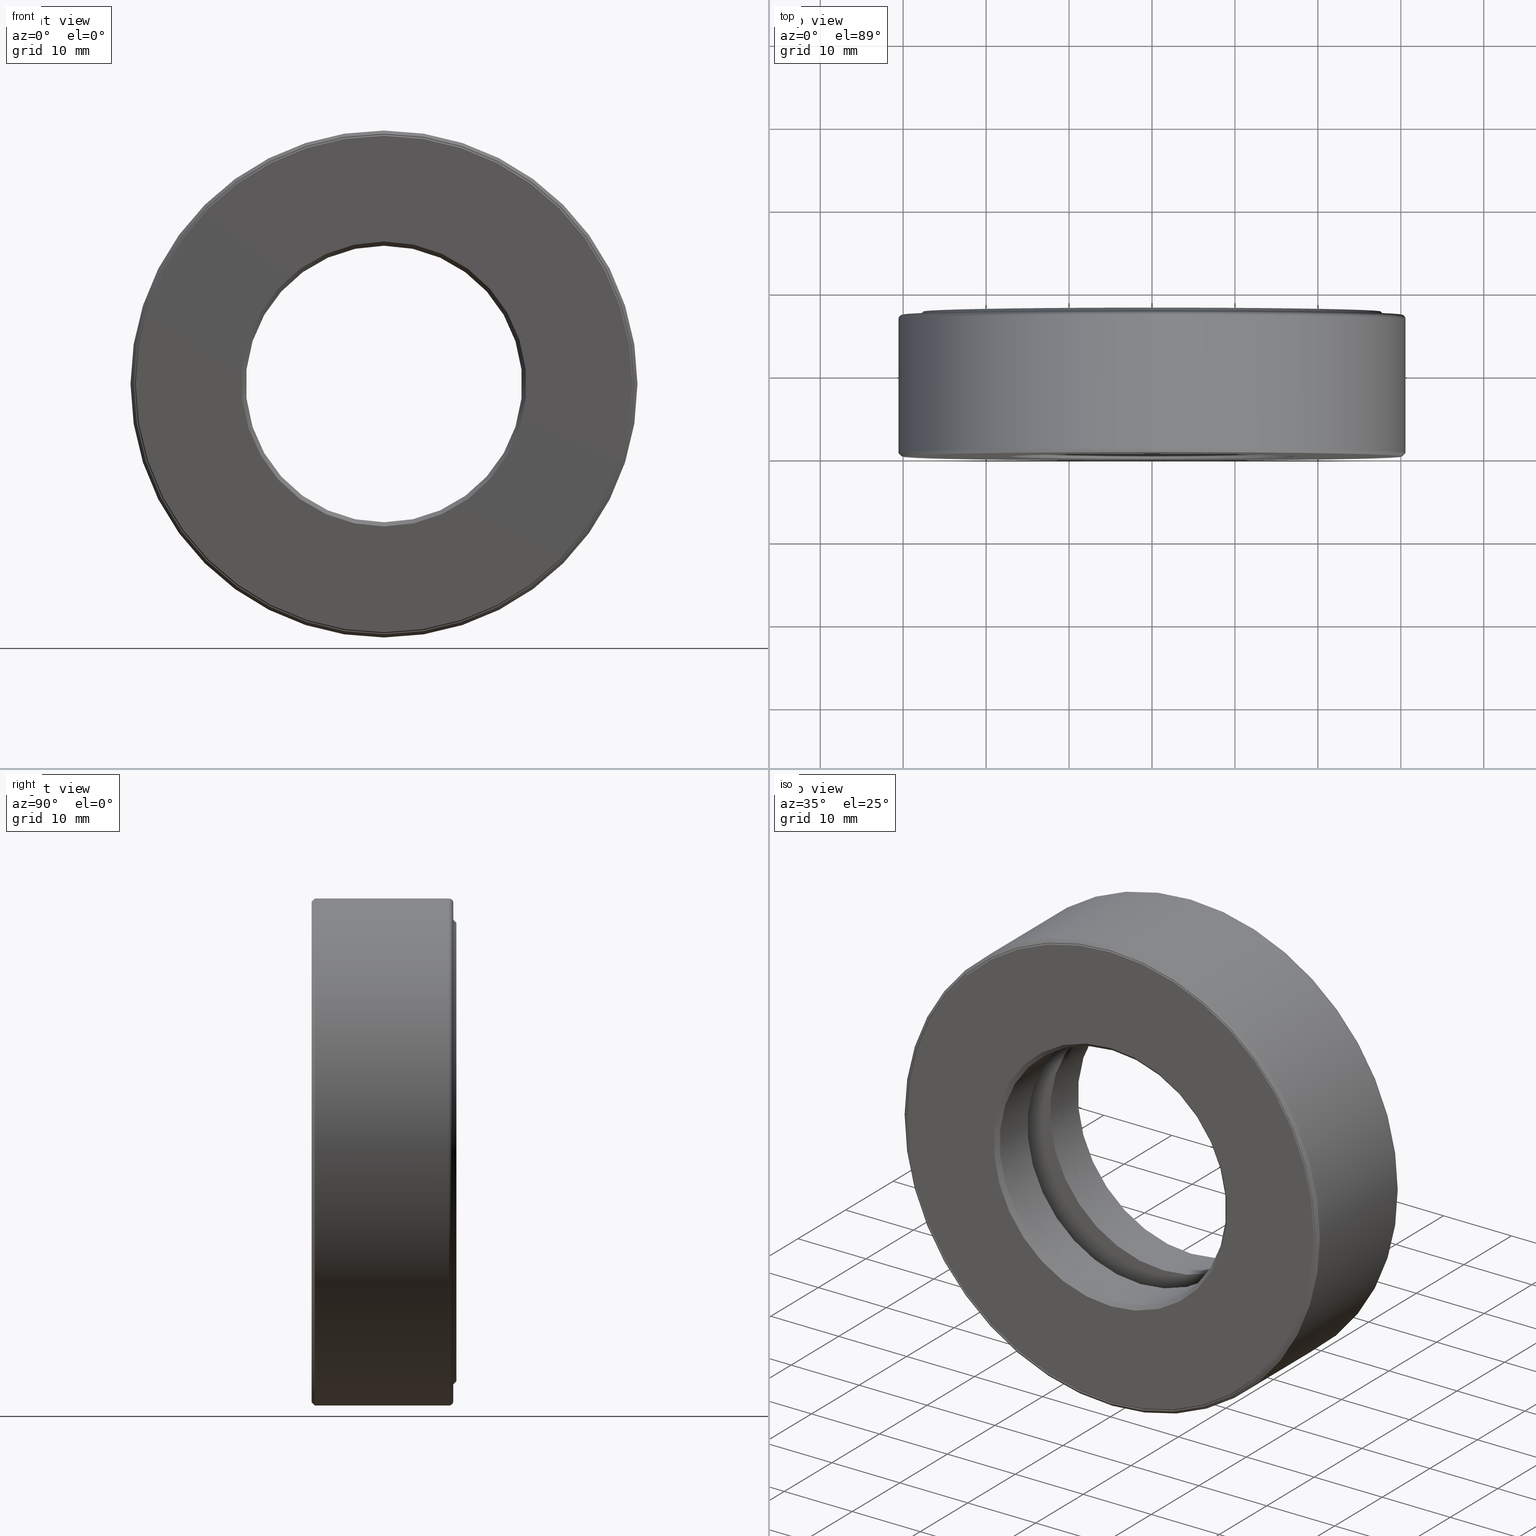
[diagram: canonical four-view strip — front | top / right | iso, engineering-drawing reading convention]
A machine part, canonical four-view strip (front | top / right | iso — engineering-drawing reading convention). The complete STEP part file that produces these views, byte-faithful:
ISO-10303-21;
HEADER;
FILE_DESCRIPTION (( 'STEP AP203' ),
    '1' );
FILE_NAME ('T-100-17.step',
    '2016-06-29T18:27:20',
    ( '' ),
    ( '' ),
    'SwSTEP 2.0',
    'SolidWorks 2016',
    '' );
FILE_SCHEMA (( 'CONFIG_CONTROL_DESIGN' ));
ENDSEC;

DATA;
#1 = DIRECTION ( 'NONE',  ( -0.0000000000000000000, 1.000000000000000000, -0.0000000000000000000 ) ) ;
#2 = EDGE_LOOP ( 'NONE', ( #71 ) ) ;
#3 = CC_DESIGN_DATE_AND_TIME_ASSIGNMENT ( #6, #473, ( #554 ) ) ;
#4 = DIRECTION ( 'NONE',  ( -0.0000000000000000000, 1.000000000000000000, -0.0000000000000000000 ) ) ;
#5 = DIRECTION ( 'NONE',  ( 0.0000000000000000000, 0.0000000000000000000, 1.000000000000000000 ) ) ;
#6 = DATE_AND_TIME ( #124, #377 ) ;
#7 = VERTEX_POINT ( 'NONE', #203 ) ;
#8 = AXIS2_PLACEMENT_3D ( 'NONE', #87, #126, #358 ) ;
#9 = CARTESIAN_POINT ( 'NONE',  ( 0.0000000000000000000, 0.5995000000000001400, 0.0000000000000000000 ) ) ;
#10 = VERTEX_POINT ( 'NONE', #117 ) ;
#11 = CARTESIAN_POINT ( 'NONE',  ( 0.0000000000000000000, 0.0000000000000000000, 0.0000000000000000000 ) ) ;
#12 = CARTESIAN_POINT ( 'NONE',  ( 0.0000000000000000000, 0.4375000000000000000, 0.0000000000000000000 ) ) ;
#13 = EDGE_CURVE ( 'NONE', #10, #10, #130, .T. ) ;
#14 = PERSON_AND_ORGANIZATION ( #346, #105 ) ;
#15 = FACE_OUTER_BOUND ( 'NONE', #225, .T. ) ;
#16 = CC_DESIGN_APPROVAL ( #100, ( #147 ) ) ;
#17 = CARTESIAN_POINT ( 'NONE',  ( 0.0000000000000000000, 0.6524999999999997500, 1.183125000000000000 ) ) ;
#18 = APPLICATION_CONTEXT ( 'configuration controlled 3d designs of mechanical parts and assemblies' ) ;
#19 = CIRCLE ( 'NONE', #313, 0.6762500000000002400 ) ;
#20 = CARTESIAN_POINT ( 'NONE',  ( 0.0000000000000000000, 0.6674999999999993200, 0.0000000000000000000 ) ) ;
#21 = CARTESIAN_POINT ( 'NONE',  ( 0.0000000000000000000, 0.0000000000000000000, 0.6762500000000002400 ) ) ;
#22 = DIRECTION ( 'NONE',  ( 0.0000000000000000000, -1.000000000000000000, 0.0000000000000000000 ) ) ;
#23 = CARTESIAN_POINT ( 'NONE',  ( 0.0000000000000000000, 0.01499999999999997700, 1.203125000000000000 ) ) ;
#24 = CARTESIAN_POINT ( 'NONE',  ( 0.0000000000000000000, 0.6875000000000000000, 0.0000000000000000000 ) ) ;
#25 = AXIS2_PLACEMENT_3D ( 'NONE', #161, #33, #31 ) ;
#26 = SHAPE_DEFINITION_REPRESENTATION ( #222, #131 ) ;
#27 = CARTESIAN_POINT ( 'NONE',  ( 0.0000000000000000000, 0.6724999999999998800, 1.183125000000000000 ) ) ;
#28 = EDGE_LOOP ( 'NONE', ( #498 ) ) ;
#29 = CARTESIAN_POINT ( 'NONE',  ( 0.0000000000000000000, 0.6724999999999998800, 0.0000000000000000000 ) ) ;
#30 = EDGE_LOOP ( 'NONE', ( #565 ) ) ;
#31 = DIRECTION ( 'NONE',  ( 0.0000000000000000000, 0.0000000000000000000, 1.000000000000000000 ) ) ;
#32 = PLANE ( 'NONE',  #445 ) ;
#33 = DIRECTION ( 'NONE',  ( -0.0000000000000000000, 1.000000000000000000, -0.0000000000000000000 ) ) ;
#34 = LOCAL_TIME ( 14, 27, 20.00000000000000000, #272 ) ;
#35 = ORIENTED_EDGE ( 'NONE', *, *, #176, .F. ) ;
#36 = AXIS2_PLACEMENT_3D ( 'NONE', #341, #471, #61 ) ;
#37 = EDGE_CURVE ( 'NONE', #310, #310, #411, .T. ) ;
#38 = UNCERTAINTY_MEASURE_WITH_UNIT (LENGTH_MEASURE( 1.000000000000000100E-005 ), #452, 'distance_accuracy_value', 'NONE');
#39 = LOCAL_TIME ( 14, 27, 20.00000000000000000, #413 ) ;
#40 = ORIENTED_EDGE ( 'NONE', *, *, #37, .T. ) ;
#41 = CARTESIAN_POINT ( 'NONE',  ( 0.0000000000000000000, 0.6524999999999997500, 0.0000000000000000000 ) ) ;
#42 = FACE_OUTER_BOUND ( 'NONE', #409, .T. ) ;
#43 = AXIS2_PLACEMENT_3D ( 'NONE', #549, #323, #426 ) ;
#44 = FACE_OUTER_BOUND ( 'NONE', #186, .T. ) ;
#45 = LOCAL_TIME ( 14, 27, 20.00000000000000000, #476 ) ;
#46 = DATE_AND_TIME ( #218, #151 ) ;
#47 = DIRECTION ( 'NONE',  ( 0.0000000000000000000, 0.0000000000000000000, 1.000000000000000000 ) ) ;
#48 = FACE_OUTER_BOUND ( 'NONE', #108, .T. ) ;
#49 = ADVANCED_FACE ( 'NONE', ( #180, #537 ), #227, .F. ) ;
#50 = CIRCLE ( 'NONE', #408, 0.8928749999999999700 ) ;
#51 = DIRECTION ( 'NONE',  ( 0.0000000000000000000, 0.0000000000000000000, 1.000000000000000000 ) ) ;
#52 = FACE_OUTER_BOUND ( 'NONE', #559, .T. ) ;
#53 = ADVANCED_FACE ( 'NONE', ( #283, #418 ), #88, .F. ) ;
#54 = MANIFOLD_SOLID_BREP ( 'BALLS[3]', #256 ) ;
#55 = EDGE_LOOP ( 'NONE', ( #579 ) ) ;
#56 = ADVANCED_FACE ( 'NONE', ( #270, #139 ), #132, .F. ) ;
#57 = DIRECTION ( 'NONE',  ( 0.0000000000000000000, -1.000000000000000000, 0.0000000000000000000 ) ) ;
#58 = AXIS2_PLACEMENT_3D ( 'NONE', #464, #4, #558 ) ;
#59 = ORIENTED_EDGE ( 'NONE', *, *, #264, .F. ) ;
#60 = DIRECTION ( 'NONE',  ( -0.0000000000000000000, 1.000000000000000000, -0.0000000000000000000 ) ) ;
#61 = DIRECTION ( 'NONE',  ( 0.0000000000000000000, 0.0000000000000000000, 1.000000000000000000 ) ) ;
#62 = APPROVAL_ROLE ( '' ) ;
#63 = FACE_OUTER_BOUND ( 'NONE', #507, .T. ) ;
#64 = FACE_OUTER_BOUND ( 'NONE', #220, .T. ) ;
#65 = CARTESIAN_POINT ( 'NONE',  ( 0.0000000000000000000, 0.2499999999999998600, 1.183124999999999800 ) ) ;
#66 = DIRECTION ( 'NONE',  ( -0.0000000000000000000, 1.000000000000000000, -0.0000000000000000000 ) ) ;
#67 = ORIENTED_EDGE ( 'NONE', *, *, #13, .F. ) ;
#68 = FACE_OUTER_BOUND ( 'NONE', #563, .T. ) ;
#69 = DIRECTION ( 'NONE',  ( -0.0000000000000000000, 1.000000000000000000, -0.0000000000000000000 ) ) ;
#70 = EDGE_LOOP ( 'NONE', ( #374 ) ) ;
#71 = ORIENTED_EDGE ( 'NONE', *, *, #370, .T. ) ;
#72 = DIRECTION ( 'NONE',  ( -0.0000000000000000000, 1.000000000000000000, 0.0000000000000000000 ) ) ;
#73 = AXIS2_PLACEMENT_3D ( 'NONE', #378, #460, #511 ) ;
#74 = APPROVAL_DATE_TIME ( #46, #242 ) ;
#75 = EDGE_LOOP ( 'NONE', ( #491 ) ) ;
#76 = DIRECTION ( 'NONE',  ( 0.0000000000000000000, -1.000000000000000000, 0.0000000000000000000 ) ) ;
#77 = CIRCLE ( 'NONE', #420, 1.176124999999999900 ) ;
#78 = CARTESIAN_POINT ( 'NONE',  ( 0.0000000000000000000, 0.0000000000000000000, 0.0000000000000000000 ) ) ;
#79 = FACE_OUTER_BOUND ( 'NONE', #472, .T. ) ;
#80 = MANIFOLD_SOLID_BREP ( 'Revolve2[1]', #116 ) ;
#81 = CLOSED_SHELL ( 'NONE', ( #327, #148, #505, #521, #414, #466, #517, #141 ) ) ;
#82 = FACE_OUTER_BOUND ( 'NONE', #84, .T. ) ;
#83 = ORIENTED_EDGE ( 'NONE', *, *, #424, .F. ) ;
#84 = EDGE_LOOP ( 'NONE', ( #589 ) ) ;
#85 = AXIS2_PLACEMENT_3D ( 'NONE', #120, #305, #540 ) ;
#86 = CARTESIAN_POINT ( 'NONE',  ( 0.0000000000000000000, 0.4375000000000000000, 0.0000000000000000000 ) ) ;
#87 = CARTESIAN_POINT ( 'NONE',  ( 0.0000000000000000000, 0.0000000000000000000, 0.0000000000000000000 ) ) ;
#88 = PLANE ( 'NONE',  #119 ) ;
#89 = FACE_OUTER_BOUND ( 'NONE', #324, .T. ) ;
#90 = CARTESIAN_POINT ( 'NONE',  ( 0.0000000000000000000, 0.2499999999999998600, 0.0000000000000000000 ) ) ;
#91 = VERTEX_POINT ( 'NONE', #298 ) ;
#92 = ADVANCED_FACE ( 'NONE', ( #162, #42 ), #399, .T. ) ;
#93 = DIRECTION ( 'NONE',  ( -0.0000000000000000000, 1.000000000000000000, -0.0000000000000000000 ) ) ;
#94 = EDGE_LOOP ( 'NONE', ( #231 ) ) ;
#95 = AXIS2_PLACEMENT_3D ( 'NONE', #29, #255, #486 ) ;
#96 = CIRCLE ( 'NONE', #535, 1.203125000000000000 ) ;
#97 = EDGE_CURVE ( 'NONE', #570, #570, #293, .T. ) ;
#98 = ORIENTED_EDGE ( 'NONE', *, *, #261, .F. ) ;
#99 = EDGE_LOOP ( 'NONE', ( #114 ) ) ;
#100 = APPROVAL ( #200, 'UNSPECIFIED' ) ;
#101 = DIMENSIONAL_EXPONENTS ( 1.000000000000000000, 0.0000000000000000000, 0.0000000000000000000, 0.0000000000000000000, 0.0000000000000000000, 0.0000000000000000000, 0.0000000000000000000 ) ;
#102 = DIRECTION ( 'NONE',  ( 0.0000000000000000000, 0.0000000000000000000, -1.000000000000000000 ) ) ;
#103 = APPLICATION_CONTEXT ( 'configuration controlled 3d designs of mechanical parts and assemblies' ) ;
#104 = FACE_OUTER_BOUND ( 'NONE', #213, .T. ) ;
#105 = ORGANIZATION ( 'UNSPECIFIED', 'UNSPECIFIED', '' ) ;
#106 = AXIS2_PLACEMENT_3D ( 'NONE', #350, #493, #308 ) ;
#107 = DIRECTION ( 'NONE',  ( -0.0000000000000000000, 1.000000000000000000, -0.0000000000000000000 ) ) ;
#108 = EDGE_LOOP ( 'NONE', ( #534 ) ) ;
#109 = DIRECTION ( 'NONE',  ( 0.0000000000000000000, -0.0000000000000000000, -1.000000000000000000 ) ) ;
#110 = EDGE_CURVE ( 'NONE', #7, #7, #173, .T. ) ;
#111 = CARTESIAN_POINT ( 'NONE',  ( 0.0000000000000000000, 0.004999999999999910800, 1.183125000000000000 ) ) ;
#112 = DATE_TIME_ROLE ( 'creation_date' ) ;
#113 = CARTESIAN_POINT ( 'NONE',  ( 1.017874999999999900, 0.3437500000000000000, -7.107783135549907000E-015 ) ) ;
#114 = ORIENTED_EDGE ( 'NONE', *, *, #248, .F. ) ;
#115 = CARTESIAN_POINT ( 'NONE',  ( 0.0000000000000000000, 0.4375000000000000000, 1.142874999999999900 ) ) ;
#116 = CLOSED_SHELL ( 'NONE', ( #458, #49, #488, #291, #278, #553, #92, #598, #137, #560, #332, #144, #53, #237, #375, #56 ) ) ;
#117 = CARTESIAN_POINT ( 'NONE',  ( 0.0000000000000000000, 0.6875000000000000000, 1.088124999999999800 ) ) ;
#118 = CARTESIAN_POINT ( 'NONE',  ( -1.017874999999999900, 0.3437500000000000000, 0.0000000000000000000 ) ) ;
#119 = AXIS2_PLACEMENT_3D ( 'NONE', #267, #135, #47 ) ;
#120 = CARTESIAN_POINT ( 'NONE',  ( 0.0000000000000000000, 0.6875000000000000000, 0.0000000000000000000 ) ) ;
#121 = CC_DESIGN_DATE_AND_TIME_ASSIGNMENT ( #525, #112, ( #366 ) ) ;
#122 = EDGE_LOOP ( 'NONE', ( #581 ) ) ;
#123 = DIRECTION ( 'NONE',  ( 0.0000000000000000000, -0.0000000000000000000, -1.000000000000000000 ) ) ;
#124 = CALENDAR_DATE ( 2016, 29, 6 ) ;
#125 = ORIENTED_EDGE ( 'NONE', *, *, #470, .T. ) ;
#126 = DIRECTION ( 'NONE',  ( -0.0000000000000000000, 1.000000000000000000, -0.0000000000000000000 ) ) ;
#127 = AXIS2_PLACEMENT_3D ( 'NONE', #562, #422, #425 ) ;
#128 = CIRCLE ( 'NONE', #415, 1.142874999999999900 ) ;
#129 = DIRECTION ( 'NONE',  ( 0.0000000000000000000, 0.0000000000000000000, 1.000000000000000000 ) ) ;
#130 = CIRCLE ( 'NONE', #175, 1.088124999999999800 ) ;
#131 = ADVANCED_BREP_SHAPE_REPRESENTATION ( 'T-100-17', ( #80, #567, #326, #449, #284, #54, #258 ), #509 ) ;
#132 = PLANE ( 'NONE',  #542 ) ;
#133 = ADVANCED_FACE ( 'NONE', ( ), #362, .T. ) ;
#134 = APPROVAL_DATE_TIME ( #442, #100 ) ;
#135 = DIRECTION ( 'NONE',  ( -0.0000000000000000000, 1.000000000000000000, 0.0000000000000000000 ) ) ;
#136 = FACE_BOUND ( 'NONE', #548, .T. ) ;
#137 = ADVANCED_FACE ( 'NONE', ( #262, #319 ), #202, .T. ) ;
#138 = CONICAL_SURFACE ( 'NONE', #127, 1.178125000000000100, 0.7853981633974453900 ) ;
#139 = FACE_OUTER_BOUND ( 'NONE', #531, .T. ) ;
#140 = CLOSED_SHELL ( 'NONE', ( #381 ) ) ;
#141 = ADVANCED_FACE ( 'NONE', ( #82, #302 ), #233, .T. ) ;
#142 = CARTESIAN_POINT ( 'NONE',  ( 0.0000000000000000000, 0.3437500000000000000, 0.0000000000000000000 ) ) ;
#143 = APPROVAL_DATE_TIME ( #280, #588 ) ;
#144 = ADVANCED_FACE ( 'NONE', ( #64, #397 ), #138, .T. ) ;
#145 = AXIS2_PLACEMENT_3D ( 'NONE', #287, #429, #344 ) ;
#146 = VERTEX_POINT ( 'NONE', #480 ) ;
#147 = PRODUCT_DEFINITION_FORMATION_WITH_SPECIFIED_SOURCE ( 'ANY', '', #167, .NOT_KNOWN. ) ;
#148 = ADVANCED_FACE ( 'NONE', ( #193, #68 ), #172, .F. ) ;
#149 = PERSON_AND_ORGANIZATION_ROLE ( 'creator' ) ;
#150 = VERTEX_POINT ( 'NONE', #21 ) ;
#151 = LOCAL_TIME ( 14, 27, 20.00000000000000000, #351 ) ;
#152 = PLANE ( 'NONE',  #500 ) ;
#153 = CYLINDRICAL_SURFACE ( 'NONE', #294, 0.6562500000000001100 ) ;
#154 = CARTESIAN_POINT ( 'NONE',  ( 0.0000000000000000000, 0.2499999999999998600, 1.142874999999999900 ) ) ;
#155 = DIRECTION ( 'NONE',  ( -1.000000000000000000, 0.0000000000000000000, 6.982962677686269100E-015 ) ) ;
#156 = CARTESIAN_POINT ( 'NONE',  ( 0.0000000000000000000, 0.0000000000000000000, 0.0000000000000000000 ) ) ;
#157 = EDGE_CURVE ( 'NONE', #188, #188, #391, .T. ) ;
#158 = CARTESIAN_POINT ( 'NONE',  ( 0.0000000000000000000, 0.6875000000000000000, 0.0000000000000000000 ) ) ;
#159 = ORIENTED_EDGE ( 'NONE', *, *, #421, .F. ) ;
#160 = CARTESIAN_POINT ( 'NONE',  ( 0.0000000000000000000, 0.2499999999999999200, 0.8928749999999999700 ) ) ;
#161 = CARTESIAN_POINT ( 'NONE',  ( 0.0000000000000000000, 0.3437500000000000000, 0.0000000000000000000 ) ) ;
#162 = FACE_OUTER_BOUND ( 'NONE', #212, .T. ) ;
#163 = ORIENTED_EDGE ( 'NONE', *, *, #365, .T. ) ;
#164 = DIRECTION ( 'NONE',  ( 0.0000000000000000000, 0.0000000000000000000, 1.000000000000000000 ) ) ;
#165 = SPHERICAL_SURFACE ( 'NONE', #106, 0.1562500000000000000 ) ;
#166 = DIRECTION ( 'NONE',  ( 0.0000000000000000000, 0.0000000000000000000, 1.000000000000000000 ) ) ;
#167 = PRODUCT ( 'T-100-17', 'T-100-17', '', ( #295 ) ) ;
#168 = AXIS2_PLACEMENT_3D ( 'NONE', #439, #72, #164 ) ;
#169 = PLANE ( 'NONE',  #168 ) ;
#170 = VERTEX_POINT ( 'NONE', #348 ) ;
#171 = CONICAL_SURFACE ( 'NONE', #276, 0.6562500000000001100, 0.7853981633974380600 ) ;
#172 = TOROIDAL_SURFACE ( 'NONE', #436, 1.017874999999999900, 0.1562499999999999200 ) ;
#173 = CIRCLE ( 'NONE', #43, 1.188125000000000100 ) ;
#174 = CYLINDRICAL_SURFACE ( 'NONE', #550, 0.6562500000000001100 ) ;
#175 = AXIS2_PLACEMENT_3D ( 'NONE', #368, #419, #455 ) ;
#176 = EDGE_CURVE ( 'NONE', #91, #91, #77, .T. ) ;
#177 = FACE_OUTER_BOUND ( 'NONE', #596, .T. ) ;
#178 = ORIENTED_EDGE ( 'NONE', *, *, #407, .T. ) ;
#179 = CONICAL_SURFACE ( 'NONE', #320, 0.6562500000000000000, 0.7853981633974449500 ) ;
#180 = FACE_BOUND ( 'NONE', #354, .T. ) ;
#181 = AXIS2_PLACEMENT_3D ( 'NONE', #398, #355, #539 ) ;
#182 = EDGE_LOOP ( 'NONE', ( #178 ) ) ;
#183 = FACE_OUTER_BOUND ( 'NONE', #196, .T. ) ;
#184 = VERTEX_POINT ( 'NONE', #431 ) ;
#185 = DIRECTION ( 'NONE',  ( -0.0000000000000000000, 1.000000000000000000, -0.0000000000000000000 ) ) ;
#186 = EDGE_LOOP ( 'NONE', ( #224 ) ) ;
#187 = EDGE_LOOP ( 'NONE', ( #483 ) ) ;
#188 = VERTEX_POINT ( 'NONE', #246 ) ;
#189 = DIRECTION ( 'NONE',  ( 0.0000000000000000000, -1.000000000000000000, 0.0000000000000000000 ) ) ;
#190 = VERTEX_POINT ( 'NONE', #576 ) ;
#191 = DIRECTION ( 'NONE',  ( -0.0000000000000000000, 1.000000000000000000, -0.0000000000000000000 ) ) ;
#192 = ORIENTED_EDGE ( 'NONE', *, *, #37, .F. ) ;
#193 = FACE_OUTER_BOUND ( 'NONE', #182, .T. ) ;
#194 = CLOSED_SHELL ( 'NONE', ( #569 ) ) ;
#195 = DIRECTION ( 'NONE',  ( 0.0000000000000000000, 0.0000000000000000000, 1.000000000000000000 ) ) ;
#196 = EDGE_LOOP ( 'NONE', ( #587 ) ) ;
#197 = PLANE ( 'NONE',  #306 ) ;
#198 = VERTEX_POINT ( 'NONE', #532 ) ;
#199 = AXIS2_PLACEMENT_3D ( 'NONE', #328, #93, #232 ) ;
#200 = APPROVAL_STATUS ( 'not_yet_approved' ) ;
#201 = DIRECTION ( 'NONE',  ( -0.0000000000000000000, 1.000000000000000000, -0.0000000000000000000 ) ) ;
#202 = CONICAL_SURFACE ( 'NONE', #318, 1.188125000000000100, 0.7853981633974460600 ) ;
#203 = CARTESIAN_POINT ( 'NONE',  ( 0.0000000000000000000, -6.829619984160658000E-017, 1.188125000000000100 ) ) ;
#204 = APPROVAL_ROLE ( '' ) ;
#205 = DIRECTION ( 'NONE',  ( -0.0000000000000000000, 1.000000000000000000, 0.0000000000000000000 ) ) ;
#206 = APPROVAL_STATUS ( 'not_yet_approved' ) ;
#207 = CARTESIAN_POINT ( 'NONE',  ( 0.0000000000000000000, 0.4375000000000000000, 0.0000000000000000000 ) ) ;
#208 = EDGE_LOOP ( 'NONE', ( #585 ) ) ;
#209 = FACE_OUTER_BOUND ( 'NONE', #352, .T. ) ;
#210 = EDGE_CURVE ( 'NONE', #150, #150, #19, .T. ) ;
#211 = CARTESIAN_POINT ( 'NONE',  ( 0.0000000000000000000, 0.4375000000000000000, 0.0000000000000000000 ) ) ;
#212 = EDGE_LOOP ( 'NONE', ( #159 ) ) ;
#213 = EDGE_LOOP ( 'NONE', ( #463 ) ) ;
#214 = DIRECTION ( 'NONE',  ( 0.0000000000000000000, 0.0000000000000000000, 1.000000000000000000 ) ) ;
#215 = FACE_OUTER_BOUND ( 'NONE', #70, .T. ) ;
#216 = AXIS2_PLACEMENT_3D ( 'NONE', #24, #76, #487 ) ;
#217 = CARTESIAN_POINT ( 'NONE',  ( 0.0000000000000000000, 0.4375000000000000000, 0.0000000000000000000 ) ) ;
#218 = CALENDAR_DATE ( 2016, 29, 6 ) ;
#219 = FACE_BOUND ( 'NONE', #603, .T. ) ;
#220 = EDGE_LOOP ( 'NONE', ( #364 ) ) ;
#221 = AXIS2_PLACEMENT_3D ( 'NONE', #41, #502, #506 ) ;
#222 = PRODUCT_DEFINITION_SHAPE ( 'NONE', 'NONE',  #366 ) ;
#223 = EDGE_CURVE ( 'NONE', #271, #271, #380, .T. ) ;
#224 = ORIENTED_EDGE ( 'NONE', *, *, #110, .F. ) ;
#225 = EDGE_LOOP ( 'NONE', ( #35 ) ) ;
#226 = DIRECTION ( 'NONE',  ( 0.0000000000000000000, -1.000000000000000000, 0.0000000000000000000 ) ) ;
#227 = PLANE ( 'NONE',  #578 ) ;
#228 = AXIS2_PLACEMENT_3D ( 'NONE', #529, #251, #335 ) ;
#229 = ORIENTED_EDGE ( 'NONE', *, *, #157, .T. ) ;
#230 = CARTESIAN_POINT ( 'NONE',  ( 0.0000000000000000000, 0.0000000000000000000, 0.0000000000000000000 ) ) ;
#231 = ORIENTED_EDGE ( 'NONE', *, *, #360, .F. ) ;
#232 = DIRECTION ( 'NONE',  ( 0.0000000000000000000, 0.0000000000000000000, 1.000000000000000000 ) ) ;
#233 = CYLINDRICAL_SURFACE ( 'NONE', #400, 1.176124999999999600 ) ;
#234 = ORIENTED_EDGE ( 'NONE', *, *, #13, .T. ) ;
#235 = EDGE_CURVE ( 'NONE', #382, #382, #249, .T. ) ;
#236 = CARTESIAN_POINT ( 'NONE',  ( 0.0000000000000000000, 0.6524999999999997500, 0.0000000000000000000 ) ) ;
#237 = ADVANCED_FACE ( 'NONE', ( #541, #536 ), #179, .F. ) ;
#238 = CARTESIAN_POINT ( 'NONE',  ( 0.0000000000000000000, 0.2499999999999998600, 0.0000000000000000000 ) ) ;
#239 = AXIS2_PLACEMENT_3D ( 'NONE', #86, #412, #129 ) ;
#240 = VERTEX_POINT ( 'NONE', #17 ) ;
#241 = DIRECTION ( 'NONE',  ( -0.0000000000000000000, 1.000000000000000000, -0.0000000000000000000 ) ) ;
#242 = APPROVAL ( #206, 'UNSPECIFIED' ) ;
#243 = DIRECTION ( 'NONE',  ( 0.0000000000000000000, 0.0000000000000000000, 1.000000000000000000 ) ) ;
#244 = PERSON_AND_ORGANIZATION_ROLE ( 'design_supplier' ) ;
#245 = CARTESIAN_POINT ( 'NONE',  ( 0.0000000000000000000, 0.6524999999999997500, 0.0000000000000000000 ) ) ;
#246 = CARTESIAN_POINT ( 'NONE',  ( 0.0000000000000000000, 0.6524999999999997500, 1.123125000000000200 ) ) ;
#247 = COORDINATED_UNIVERSAL_TIME_OFFSET ( 5, 0, .BEHIND. ) ;
#248 = EDGE_CURVE ( 'NONE', #545, #545, #372, .T. ) ;
#249 = CIRCLE ( 'NONE', #58, 1.183125000000000000 ) ;
#250 = ORIENTED_EDGE ( 'NONE', *, *, #395, .T. ) ;
#251 = DIRECTION ( 'NONE',  ( -0.0000000000000000000, 1.000000000000000000, -0.0000000000000000000 ) ) ;
#252 = DIRECTION ( 'NONE',  ( 0.0000000000000000000, -1.000000000000000000, 0.0000000000000000000 ) ) ;
#253 = FACE_OUTER_BOUND ( 'NONE', #94, .T. ) ;
#254 = ORIENTED_EDGE ( 'NONE', *, *, #261, .T. ) ;
#255 = DIRECTION ( 'NONE',  ( -0.0000000000000000000, 1.000000000000000000, -0.0000000000000000000 ) ) ;
#256 = CLOSED_SHELL ( 'NONE', ( #555 ) ) ;
#257 = DIRECTION ( 'NONE',  ( -0.0000000000000000000, 1.000000000000000000, -0.0000000000000000000 ) ) ;
#258 = AXIS2_PLACEMENT_3D ( 'NONE', #11, #385, #527 ) ;
#259 = DIRECTION ( 'NONE',  ( 0.0000000000000000000, 0.0000000000000000000, 1.000000000000000000 ) ) ;
#260 = CIRCLE ( 'NONE', #95, 1.183125000000000000 ) ;
#261 = EDGE_CURVE ( 'NONE', #538, #538, #311, .T. ) ;
#262 = FACE_OUTER_BOUND ( 'NONE', #99, .T. ) ;
#263 = ORIENTED_EDGE ( 'NONE', *, *, #264, .T. ) ;
#264 = EDGE_CURVE ( 'NONE', #489, #489, #50, .T. ) ;
#265 = FACE_OUTER_BOUND ( 'NONE', #430, .T. ) ;
#266 = PERSON_AND_ORGANIZATION ( #346, #105 ) ;
#267 = CARTESIAN_POINT ( 'NONE',  ( -1.137650739174976800E-032, -3.254740773701561800E-017, 0.0000000000000000000 ) ) ;
#268 = DIRECTION ( 'NONE',  ( 1.000000000000000000, 0.0000000000000000000, 0.0000000000000000000 ) ) ;
#269 = AXIS2_PLACEMENT_3D ( 'NONE', #282, #322, #5 ) ;
#270 = FACE_BOUND ( 'NONE', #580, .T. ) ;
#271 = VERTEX_POINT ( 'NONE', #154 ) ;
#272 = COORDINATED_UNIVERSAL_TIME_OFFSET ( 5, 0, .BEHIND. ) ;
#273 = EDGE_LOOP ( 'NONE', ( #437 ) ) ;
#274 = SPHERICAL_SURFACE ( 'NONE', #478, 0.1562500000000000000 ) ;
#275 = CARTESIAN_POINT ( 'NONE',  ( 0.0000000000000000000, 0.4375000000000000000, 0.0000000000000000000 ) ) ;
#276 = AXIS2_PLACEMENT_3D ( 'NONE', #20, #66, #575 ) ;
#277 = EDGE_CURVE ( 'NONE', #146, #146, #605, .T. ) ;
#278 = ADVANCED_FACE ( 'NONE', ( #518, #453 ), #462, .F. ) ;
#279 = DIRECTION ( 'NONE',  ( 0.0000000000000000000, 0.0000000000000000000, 1.000000000000000000 ) ) ;
#280 = DATE_AND_TIME ( #403, #45 ) ;
#281 = EDGE_LOOP ( 'NONE', ( #433 ) ) ;
#282 = CARTESIAN_POINT ( 'NONE',  ( 0.0000000000000000000, 0.01499999999999997700, 0.0000000000000000000 ) ) ;
#283 = FACE_OUTER_BOUND ( 'NONE', #281, .T. ) ;
#284 = MANIFOLD_SOLID_BREP ( 'BALLS[2]', #140 ) ;
#285 = DIRECTION ( 'NONE',  ( 0.0000000000000000000, 0.0000000000000000000, 1.000000000000000000 ) ) ;
#286 = PERSON_AND_ORGANIZATION_ROLE ( 'creator' ) ;
#287 = CARTESIAN_POINT ( 'NONE',  ( 0.0000000000000000000, 0.6674999999999993200, 0.0000000000000000000 ) ) ;
#288 = AXIS2_PLACEMENT_3D ( 'NONE', #238, #60, #513 ) ;
#289 = PERSON_AND_ORGANIZATION ( #346, #105 ) ;
#290 =( NAMED_UNIT ( * ) PLANE_ANGLE_UNIT ( ) SI_UNIT ( $, .RADIAN. ) );
#291 = ADVANCED_FACE ( 'NONE', ( #63, #219 ), #152, .F. ) ;
#292 = CIRCLE ( 'NONE', #181, 1.183125000000000000 ) ;
#293 = CIRCLE ( 'NONE', #239, 0.6562500000000001100 ) ;
#294 = AXIS2_PLACEMENT_3D ( 'NONE', #577, #482, #296 ) ;
#295 = MECHANICAL_CONTEXT ( 'NONE', #18, 'mechanical' ) ;
#296 = DIRECTION ( 'NONE',  ( 0.0000000000000000000, 0.0000000000000000000, 1.000000000000000000 ) ) ;
#297 = CC_DESIGN_APPROVAL ( #588, ( #554 ) ) ;
#298 = CARTESIAN_POINT ( 'NONE',  ( 0.0000000000000000000, 0.4375000000000000000, 1.176124999999999900 ) ) ;
#299 = APPROVAL_STATUS ( 'not_yet_approved' ) ;
#300 = DIRECTION ( 'NONE',  ( -0.0000000000000000000, 1.000000000000000000, -0.0000000000000000000 ) ) ;
#301 = EDGE_LOOP ( 'NONE', ( #125 ) ) ;
#302 = FACE_OUTER_BOUND ( 'NONE', #208, .T. ) ;
#303 = ORIENTED_EDGE ( 'NONE', *, *, #210, .T. ) ;
#304 = CARTESIAN_POINT ( 'NONE',  ( 0.0000000000000000000, 0.4375000000000000000, 0.6562500000000001100 ) ) ;
#305 = DIRECTION ( 'NONE',  ( -0.0000000000000000000, 1.000000000000000000, 0.0000000000000000000 ) ) ;
#306 = AXIS2_PLACEMENT_3D ( 'NONE', #12, #22, #109 ) ;
#307 = FACE_BOUND ( 'NONE', #543, .T. ) ;
#308 = DIRECTION ( 'NONE',  ( 1.047444401652939400E-014, 0.0000000000000000000, 1.000000000000000000 ) ) ;
#309 = CYLINDRICAL_SURFACE ( 'NONE', #519, 1.183125000000000000 ) ;
#310 = VERTEX_POINT ( 'NONE', #389 ) ;
#311 = CIRCLE ( 'NONE', #73, 0.6562500000000000000 ) ;
#312 = ORIENTED_EDGE ( 'NONE', *, *, #424, .T. ) ;
#313 = AXIS2_PLACEMENT_3D ( 'NONE', #371, #241, #325 ) ;
#314 = ORIENTED_EDGE ( 'NONE', *, *, #157, .F. ) ;
#315 = DIRECTION ( 'NONE',  ( -1.000000000000000000, 0.0000000000000000000, 3.491481338843134500E-015 ) ) ;
#316 = FACE_BOUND ( 'NONE', #591, .T. ) ;
#317 = VERTEX_POINT ( 'NONE', #392 ) ;
#318 = AXIS2_PLACEMENT_3D ( 'NONE', #330, #568, #279 ) ;
#319 = FACE_BOUND ( 'NONE', #30, .T. ) ;
#320 = AXIS2_PLACEMENT_3D ( 'NONE', #428, #57, #102 ) ;
#321 = EDGE_CURVE ( 'NONE', #190, #190, #405, .T. ) ;
#322 = DIRECTION ( 'NONE',  ( -0.0000000000000000000, 1.000000000000000000, -0.0000000000000000000 ) ) ;
#323 = DIRECTION ( 'NONE',  ( -0.0000000000000000000, 1.000000000000000000, -0.0000000000000000000 ) ) ;
#324 = EDGE_LOOP ( 'NONE', ( #312 ) ) ;
#325 = DIRECTION ( 'NONE',  ( 0.0000000000000000000, 0.0000000000000000000, 1.000000000000000000 ) ) ;
#326 = MANIFOLD_SOLID_BREP ( 'Revolve3', #194 ) ;
#327 = ADVANCED_FACE ( 'NONE', ( #479, #15 ), #197, .T. ) ;
#328 = CARTESIAN_POINT ( 'NONE',  ( 0.0000000000000000000, 0.0000000000000000000, 0.0000000000000000000 ) ) ;
#329 = AXIS2_PLACEMENT_3D ( 'NONE', #474, #201, #524 ) ;
#330 = CARTESIAN_POINT ( 'NONE',  ( 0.0000000000000000000, -6.829619984160658000E-017, 0.0000000000000000000 ) ) ;
#331 = LENGTH_MEASURE_WITH_UNIT ( LENGTH_MEASURE( 0.02539999999999999900 ), #495 );
#332 = ADVANCED_FACE ( 'NONE', ( #369, #48 ), #361, .F. ) ;
#333 = ORIENTED_EDGE ( 'NONE', *, *, #277, .F. ) ;
#334 = CC_DESIGN_PERSON_AND_ORGANIZATION_ASSIGNMENT ( #367, #533, ( #554 ) ) ;
#335 = DIRECTION ( 'NONE',  ( 0.0000000000000000000, 0.0000000000000000000, 1.000000000000000000 ) ) ;
#336 = ORIENTED_EDGE ( 'NONE', *, *, #421, .T. ) ;
#337 = PERSON_AND_ORGANIZATION_ROLE ( 'design_owner' ) ;
#338 = DIRECTION ( 'NONE',  ( -0.0000000000000000000, 1.000000000000000000, -0.0000000000000000000 ) ) ;
#339 = DIRECTION ( 'NONE',  ( -0.0000000000000000000, 1.000000000000000000, -0.0000000000000000000 ) ) ;
#340 = SECURITY_CLASSIFICATION_LEVEL ( 'unclassified' ) ;
#341 = CARTESIAN_POINT ( 'NONE',  ( 0.0000000000000000000, 0.2499999999999998600, 0.0000000000000000000 ) ) ;
#342 = ORIENTED_EDGE ( 'NONE', *, *, #606, .F. ) ;
#343 = FACE_OUTER_BOUND ( 'NONE', #456, .T. ) ;
#344 = DIRECTION ( 'NONE',  ( 0.0000000000000000000, 0.0000000000000000000, 1.000000000000000000 ) ) ;
#345 = EDGE_LOOP ( 'NONE', ( #314 ) ) ;
#346 = PERSON ( 'UNSPECIFIED', 'UNSPECIFIED', 'UNSPECIFIED', ('UNSPECIFIED'), ('UNSPECIFIED'), ('UNSPECIFIED') ) ;
#347 = EDGE_LOOP ( 'NONE', ( #303 ) ) ;
#348 = CARTESIAN_POINT ( 'NONE',  ( 0.0000000000000000000, 0.6875000000000000000, 0.6762500000000003500 ) ) ;
#349 = PLANE ( 'NONE',  #85 ) ;
#350 = CARTESIAN_POINT ( 'NONE',  ( -1.066167470332486300E-014, 0.3437500000000000000, -1.017874999999999900 ) ) ;
#351 = COORDINATED_UNIVERSAL_TIME_OFFSET ( 5, 0, .BEHIND. ) ;
#352 = EDGE_LOOP ( 'NONE', ( #40 ) ) ;
#353 = DIRECTION ( 'NONE',  ( -0.0000000000000000000, 1.000000000000000000, -0.0000000000000000000 ) ) ;
#354 = EDGE_LOOP ( 'NONE', ( #516 ) ) ;
#355 = DIRECTION ( 'NONE',  ( -0.0000000000000000000, 1.000000000000000000, -0.0000000000000000000 ) ) ;
#356 = AXIS2_PLACEMENT_3D ( 'NONE', #236, #566, #195 ) ;
#357 = VERTEX_POINT ( 'NONE', #65 ) ;
#358 = DIRECTION ( 'NONE',  ( 0.0000000000000000000, 0.0000000000000000000, 1.000000000000000000 ) ) ;
#359 = AXIS2_PLACEMENT_3D ( 'NONE', #211, #252, #582 ) ;
#360 = EDGE_CURVE ( 'NONE', #357, #357, #602, .T. ) ;
#361 = CYLINDRICAL_SURFACE ( 'NONE', #467, 1.183125000000000000 ) ;
#362 = SPHERICAL_SURFACE ( 'NONE', #604, 0.1562500000000000000 ) ;
#363 = CLOSED_SHELL ( 'NONE', ( #133 ) ) ;
#364 = ORIENTED_EDGE ( 'NONE', *, *, #235, .F. ) ;
#365 = EDGE_CURVE ( 'NONE', #490, #490, #561, .T. ) ;
#366 = PRODUCT_DEFINITION ( 'UNKNOWN', '', #147, #597 ) ;
#367 = PERSON_AND_ORGANIZATION ( #346, #105 ) ;
#368 = CARTESIAN_POINT ( 'NONE',  ( 0.0000000000000000000, 0.6875000000000000000, 0.0000000000000000000 ) ) ;
#369 = FACE_OUTER_BOUND ( 'NONE', #28, .T. ) ;
#370 = EDGE_CURVE ( 'NONE', #386, #386, #497, .T. ) ;
#371 = CARTESIAN_POINT ( 'NONE',  ( 0.0000000000000000000, 0.0000000000000000000, 0.0000000000000000000 ) ) ;
#372 = CIRCLE ( 'NONE', #269, 1.203125000000000000 ) ;
#373 = ORIENTED_EDGE ( 'NONE', *, *, #97, .T. ) ;
#374 = ORIENTED_EDGE ( 'NONE', *, *, #321, .T. ) ;
#375 = ADVANCED_FACE ( 'NONE', ( #590, #209 ), #153, .F. ) ;
#376 = TOROIDAL_SURFACE ( 'NONE', #25, 1.017874999999999900, 0.1562500000000000000 ) ;
#377 = LOCAL_TIME ( 14, 27, 20.00000000000000000, #247 ) ;
#378 = CARTESIAN_POINT ( 'NONE',  ( 0.0000000000000000000, 0.02000000000000033300, 0.0000000000000000000 ) ) ;
#379 = EDGE_LOOP ( 'NONE', ( #546 ) ) ;
#380 = CIRCLE ( 'NONE', #288, 1.142874999999999900 ) ;
#381 = ADVANCED_FACE ( 'NONE', ( ), #461, .T. ) ;
#382 = VERTEX_POINT ( 'NONE', #111 ) ;
#383 = DIRECTION ( 'NONE',  ( -0.0000000000000000000, 1.000000000000000000, -0.0000000000000000000 ) ) ;
#384 = AXIS2_PLACEMENT_3D ( 'NONE', #9, #300, #394 ) ;
#385 = DIRECTION ( 'NONE',  ( 0.0000000000000000000, 0.0000000000000000000, 1.000000000000000000 ) ) ;
#386 = VERTEX_POINT ( 'NONE', #526 ) ;
#387 = FACE_OUTER_BOUND ( 'NONE', #122, .T. ) ;
#388 = EDGE_LOOP ( 'NONE', ( #373 ) ) ;
#389 = CARTESIAN_POINT ( 'NONE',  ( 0.0000000000000000000, 0.2499999999999999700, 0.6562500000000001100 ) ) ;
#390 = DIRECTION ( 'NONE',  ( 6.982962677686269100E-015, -0.0000000000000000000, 1.000000000000000000 ) ) ;
#391 = CIRCLE ( 'NONE', #356, 1.123125000000000200 ) ;
#392 = CARTESIAN_POINT ( 'NONE',  ( 0.0000000000000000000, 0.6524999999999997500, 1.203125000000000000 ) ) ;
#393 = ORIENTED_EDGE ( 'NONE', *, *, #395, .F. ) ;
#394 = DIRECTION ( 'NONE',  ( 0.0000000000000000000, 0.0000000000000000000, 1.000000000000000000 ) ) ;
#395 = EDGE_CURVE ( 'NONE', #317, #317, #96, .T. ) ;
#396 = PERSON_AND_ORGANIZATION ( #346, #105 ) ;
#397 = FACE_BOUND ( 'NONE', #2, .T. ) ;
#398 = CARTESIAN_POINT ( 'NONE',  ( 0.0000000000000000000, 0.6524999999999997500, 0.0000000000000000000 ) ) ;
#399 = TOROIDAL_SURFACE ( 'NONE', #221, 1.183125000000000000, 0.02000000000000005900 ) ;
#400 = AXIS2_PLACEMENT_3D ( 'NONE', #230, #556, #51 ) ;
#401 = PLANE ( 'NONE',  #359 ) ;
#402 = DIRECTION ( 'NONE',  ( 0.0000000000000000000, 0.0000000000000000000, 1.000000000000000000 ) ) ;
#403 = CALENDAR_DATE ( 2016, 29, 6 ) ;
#404 = DIRECTION ( 'NONE',  ( -0.0000000000000000000, 1.000000000000000000, -0.0000000000000000000 ) ) ;
#405 = CIRCLE ( 'NONE', #384, 1.176124999999999600 ) ;
#406 = CIRCLE ( 'NONE', #584, 0.6762500000000003500 ) ;
#407 = EDGE_CURVE ( 'NONE', #184, #184, #528, .T. ) ;
#408 = AXIS2_PLACEMENT_3D ( 'NONE', #432, #383, #243 ) ;
#409 = EDGE_LOOP ( 'NONE', ( #250 ) ) ;
#410 = CC_DESIGN_PERSON_AND_ORGANIZATION_ASSIGNMENT ( #501, #149, ( #366 ) ) ;
#411 = CIRCLE ( 'NONE', #544, 0.6562500000000001100 ) ;
#412 = DIRECTION ( 'NONE',  ( -0.0000000000000000000, 1.000000000000000000, -0.0000000000000000000 ) ) ;
#413 = COORDINATED_UNIVERSAL_TIME_OFFSET ( 5, 0, .BEHIND. ) ;
#414 = ADVANCED_FACE ( 'NONE', ( #343, #136 ), #171, .F. ) ;
#415 = AXIS2_PLACEMENT_3D ( 'NONE', #217, #257, #166 ) ;
#416 = DIRECTION ( 'NONE',  ( 0.0000000000000000000, -0.0000000000000000000, -1.000000000000000000 ) ) ;
#417 = CIRCLE ( 'NONE', #564, 1.123125000000000200 ) ;
#418 = FACE_BOUND ( 'NONE', #347, .T. ) ;
#419 = DIRECTION ( 'NONE',  ( -0.0000000000000000000, 1.000000000000000000, -0.0000000000000000000 ) ) ;
#420 = AXIS2_PLACEMENT_3D ( 'NONE', #275, #191, #601 ) ;
#421 = EDGE_CURVE ( 'NONE', #515, #515, #260, .T. ) ;
#422 = DIRECTION ( 'NONE',  ( -0.0000000000000000000, 1.000000000000000000, -0.0000000000000000000 ) ) ;
#423 = ORIENTED_EDGE ( 'NONE', *, *, #470, .F. ) ;
#424 = EDGE_CURVE ( 'NONE', #240, #240, #292, .T. ) ;
#425 = DIRECTION ( 'NONE',  ( 0.0000000000000000000, 0.0000000000000000000, 1.000000000000000000 ) ) ;
#426 = DIRECTION ( 'NONE',  ( 0.0000000000000000000, 0.0000000000000000000, 1.000000000000000000 ) ) ;
#427 = APPLICATION_PROTOCOL_DEFINITION ( 'international standard', 'config_control_design', 1994, #103 ) ;
#428 = CARTESIAN_POINT ( 'NONE',  ( 0.0000000000000000000, 0.02000000000000033300, 0.0000000000000000000 ) ) ;
#429 = DIRECTION ( 'NONE',  ( -0.0000000000000000000, 1.000000000000000000, -0.0000000000000000000 ) ) ;
#430 = EDGE_LOOP ( 'NONE', ( #59 ) ) ;
#431 = CARTESIAN_POINT ( 'NONE',  ( 0.0000000000000000000, 0.4375000000000000000, 0.8928749999999999700 ) ) ;
#432 = CARTESIAN_POINT ( 'NONE',  ( 0.0000000000000000000, 0.2499999999999999200, 0.0000000000000000000 ) ) ;
#433 = ORIENTED_EDGE ( 'NONE', *, *, #370, .F. ) ;
#434 = CARTESIAN_POINT ( 'NONE',  ( 0.0000000000000000000, -6.590132143747920800E-017, 1.183124999999999800 ) ) ;
#435 = CYLINDRICAL_SURFACE ( 'NONE', #8, 1.203125000000000000 ) ;
#436 = AXIS2_PLACEMENT_3D ( 'NONE', #142, #1, #285 ) ;
#437 = ORIENTED_EDGE ( 'NONE', *, *, #248, .T. ) ;
#438 = ORIENTED_EDGE ( 'NONE', *, *, #210, .F. ) ;
#439 = CARTESIAN_POINT ( 'NONE',  ( -2.398680184444861200E-031, -6.709876063954291900E-017, 0.0000000000000000000 ) ) ;
#440 = CARTESIAN_POINT ( 'NONE',  ( 0.0000000000000000000, 0.6724999999999998800, 0.0000000000000000000 ) ) ;
#441 = DIRECTION ( 'NONE',  ( 0.0000000000000000000, -1.000000000000000000, 0.0000000000000000000 ) ) ;
#442 = DATE_AND_TIME ( #504, #34 ) ;
#443 = CARTESIAN_POINT ( 'NONE',  ( 0.0000000000000000000, 0.6724999999999998800, 0.0000000000000000000 ) ) ;
#444 = DIRECTION ( 'NONE',  ( 0.0000000000000000000, 0.0000000000000000000, -1.000000000000000000 ) ) ;
#445 = AXIS2_PLACEMENT_3D ( 'NONE', #443, #441, #123 ) ;
#446 = EDGE_CURVE ( 'NONE', #198, #198, #417, .T. ) ;
#447 = CC_DESIGN_PERSON_AND_ORGANIZATION_ASSIGNMENT ( #396, #337, ( #167 ) ) ;
#448 = EDGE_LOOP ( 'NONE', ( #342 ) ) ;
#449 = MANIFOLD_SOLID_BREP ( 'BALLS[1]', #363 ) ;
#450 = AXIS2_PLACEMENT_3D ( 'NONE', #113, #390, #155 ) ;
#451 = APPROVAL_PERSON_ORGANIZATION ( #289, #242, #204 ) ;
#452 =( CONVERSION_BASED_UNIT ( 'INCH', #331 ) LENGTH_UNIT ( ) NAMED_UNIT ( #101 ) );
#453 = FACE_OUTER_BOUND ( 'NONE', #75, .T. ) ;
#454 = CC_DESIGN_PERSON_AND_ORGANIZATION_ASSIGNMENT ( #14, #286, ( #147 ) ) ;
#455 = DIRECTION ( 'NONE',  ( 0.0000000000000000000, 0.0000000000000000000, 1.000000000000000000 ) ) ;
#456 = EDGE_LOOP ( 'NONE', ( #508 ) ) ;
#457 = DIRECTION ( 'NONE',  ( 0.0000000000000000000, 0.0000000000000000000, 1.000000000000000000 ) ) ;
#458 = ADVANCED_FACE ( 'NONE', ( #265, #104 ), #376, .F. ) ;
#459 = DIRECTION ( 'NONE',  ( -3.491481338843134500E-015, 0.0000000000000000000, -1.000000000000000000 ) ) ;
#460 = DIRECTION ( 'NONE',  ( -0.0000000000000000000, 1.000000000000000000, -0.0000000000000000000 ) ) ;
#461 = SPHERICAL_SURFACE ( 'NONE', #450, 0.1562500000000000000 ) ;
#462 = CYLINDRICAL_SURFACE ( 'NONE', #199, 1.123125000000000200 ) ;
#463 = ORIENTED_EDGE ( 'NONE', *, *, #223, .T. ) ;
#464 = CARTESIAN_POINT ( 'NONE',  ( 0.0000000000000000000, 0.004999999999999910800, 0.0000000000000000000 ) ) ;
#465 = EDGE_LOOP ( 'NONE', ( #98 ) ) ;
#466 = ADVANCED_FACE ( 'NONE', ( #177, #514 ), #349, .T. ) ;
#467 = AXIS2_PLACEMENT_3D ( 'NONE', #156, #107, #572 ) ;
#468 = PRODUCT_RELATED_PRODUCT_CATEGORY ( 'detail', '', ( #167 ) ) ;
#469 = APPROVAL_PERSON_ORGANIZATION ( #266, #100, #62 ) ;
#470 = EDGE_CURVE ( 'NONE', #552, #552, #128, .T. ) ;
#471 = DIRECTION ( 'NONE',  ( -0.0000000000000000000, 1.000000000000000000, -0.0000000000000000000 ) ) ;
#472 = EDGE_LOOP ( 'NONE', ( #393 ) ) ;
#473 = DATE_TIME_ROLE ( 'classification_date' ) ;
#474 = CARTESIAN_POINT ( 'NONE',  ( 0.0000000000000000000, -6.509481547403126000E-017, 0.0000000000000000000 ) ) ;
#475 = CARTESIAN_POINT ( 'NONE',  ( 0.0000000000000000000, 0.6524999999999997500, 0.0000000000000000000 ) ) ;
#476 = COORDINATED_UNIVERSAL_TIME_OFFSET ( 5, 0, .BEHIND. ) ;
#477 = DIRECTION ( 'NONE',  ( 0.0000000000000000000, 0.0000000000000000000, 1.000000000000000000 ) ) ;
#478 = AXIS2_PLACEMENT_3D ( 'NONE', #118, #444, #268 ) ;
#479 = FACE_BOUND ( 'NONE', #301, .T. ) ;
#480 = CARTESIAN_POINT ( 'NONE',  ( 0.0000000000000000000, 0.6674999999999993200, 0.6562500000000001100 ) ) ;
#481 = APPLICATION_PROTOCOL_DEFINITION ( 'international standard', 'config_control_design', 1994, #18 ) ;
#482 = DIRECTION ( 'NONE',  ( -0.0000000000000000000, 1.000000000000000000, -0.0000000000000000000 ) ) ;
#483 = ORIENTED_EDGE ( 'NONE', *, *, #446, .F. ) ;
#484 = CC_DESIGN_APPROVAL ( #242, ( #366 ) ) ;
#485 = DIRECTION ( 'NONE',  ( 0.0000000000000000000, 0.0000000000000000000, 1.000000000000000000 ) ) ;
#486 = DIRECTION ( 'NONE',  ( 0.0000000000000000000, 0.0000000000000000000, 1.000000000000000000 ) ) ;
#487 = DIRECTION ( 'NONE',  ( 0.0000000000000000000, 0.0000000000000000000, -1.000000000000000000 ) ) ;
#488 = ADVANCED_FACE ( 'NONE', ( #253, #89 ), #309, .F. ) ;
#489 = VERTEX_POINT ( 'NONE', #160 ) ;
#490 = VERTEX_POINT ( 'NONE', #434 ) ;
#491 = ORIENTED_EDGE ( 'NONE', *, *, #446, .T. ) ;
#492 = DIRECTION ( 'NONE',  ( 0.0000000000000000000, 0.0000000000000000000, 1.000000000000000000 ) ) ;
#493 = DIRECTION ( 'NONE',  ( 1.000000000000000000, 0.0000000000000000000, -1.047444401652939400E-014 ) ) ;
#494 =( NAMED_UNIT ( * ) SI_UNIT ( $, .STERADIAN. ) SOLID_ANGLE_UNIT ( ) );
#495 =( LENGTH_UNIT ( ) NAMED_UNIT ( * ) SI_UNIT ( $, .METRE. ) );
#496 = PERSON_AND_ORGANIZATION ( #346, #105 ) ;
#497 = CIRCLE ( 'NONE', #329, 1.178125000000000100 ) ;
#498 = ORIENTED_EDGE ( 'NONE', *, *, #365, .F. ) ;
#499 = CONICAL_SURFACE ( 'NONE', #216, 1.088124999999999800, 0.7853981633974482800 ) ;
#500 = AXIS2_PLACEMENT_3D ( 'NONE', #245, #205, #522 ) ;
#501 = PERSON_AND_ORGANIZATION ( #346, #105 ) ;
#502 = DIRECTION ( 'NONE',  ( -0.0000000000000000000, 1.000000000000000000, -0.0000000000000000000 ) ) ;
#503 = CARTESIAN_POINT ( 'NONE',  ( 0.0000000000000000000, 0.2499999999999999700, 0.0000000000000000000 ) ) ;
#504 = CALENDAR_DATE ( 2016, 29, 6 ) ;
#505 = ADVANCED_FACE ( 'NONE', ( #551, #387 ), #401, .T. ) ;
#506 = DIRECTION ( 'NONE',  ( 0.0000000000000000000, 0.0000000000000000000, 1.000000000000000000 ) ) ;
#507 = EDGE_LOOP ( 'NONE', ( #83 ) ) ;
#508 = ORIENTED_EDGE ( 'NONE', *, *, #606, .T. ) ;
#509 =( GEOMETRIC_REPRESENTATION_CONTEXT ( 3 ) GLOBAL_UNCERTAINTY_ASSIGNED_CONTEXT ( ( #38 ) ) GLOBAL_UNIT_ASSIGNED_CONTEXT ( ( #452, #290, #494 ) ) REPRESENTATION_CONTEXT ( 'NONE', 'WORKASPACE' ) );
#510 = EDGE_LOOP ( 'NONE', ( #438 ) ) ;
#511 = DIRECTION ( 'NONE',  ( 0.0000000000000000000, 0.0000000000000000000, 1.000000000000000000 ) ) ;
#512 = CC_DESIGN_SECURITY_CLASSIFICATION ( #554, ( #147 ) ) ;
#513 = DIRECTION ( 'NONE',  ( 0.0000000000000000000, 0.0000000000000000000, 1.000000000000000000 ) ) ;
#514 = FACE_BOUND ( 'NONE', #448, .T. ) ;
#515 = VERTEX_POINT ( 'NONE', #27 ) ;
#516 = ORIENTED_EDGE ( 'NONE', *, *, #223, .F. ) ;
#517 = ADVANCED_FACE ( 'NONE', ( #215, #316 ), #499, .T. ) ;
#518 = FACE_OUTER_BOUND ( 'NONE', #345, .T. ) ;
#519 = AXIS2_PLACEMENT_3D ( 'NONE', #78, #69, #402 ) ;
#520 = FACE_OUTER_BOUND ( 'NONE', #379, .T. ) ;
#521 = ADVANCED_FACE ( 'NONE', ( #520, #183 ), #174, .F. ) ;
#522 = DIRECTION ( 'NONE',  ( 0.0000000000000000000, 0.0000000000000000000, 1.000000000000000000 ) ) ;
#523 = PERSON_AND_ORGANIZATION ( #346, #105 ) ;
#524 = DIRECTION ( 'NONE',  ( 0.0000000000000000000, 0.0000000000000000000, 1.000000000000000000 ) ) ;
#525 = DATE_AND_TIME ( #571, #39 ) ;
#526 = CARTESIAN_POINT ( 'NONE',  ( 0.0000000000000000000, -6.509481547403126000E-017, 1.178125000000000100 ) ) ;
#527 = DIRECTION ( 'NONE',  ( 1.000000000000000000, 0.0000000000000000000, 0.0000000000000000000 ) ) ;
#528 = CIRCLE ( 'NONE', #593, 0.8928749999999999700 ) ;
#529 = CARTESIAN_POINT ( 'NONE',  ( 0.0000000000000000000, -6.590132143747920800E-017, 0.0000000000000000000 ) ) ;
#530 = CC_DESIGN_PERSON_AND_ORGANIZATION_ASSIGNMENT ( #496, #244, ( #147 ) ) ;
#531 = EDGE_LOOP ( 'NONE', ( #263 ) ) ;
#532 = CARTESIAN_POINT ( 'NONE',  ( 0.0000000000000000000, 0.6724999999999998800, 1.123125000000000200 ) ) ;
#533 = PERSON_AND_ORGANIZATION_ROLE ( 'classification_officer' ) ;
#534 = ORIENTED_EDGE ( 'NONE', *, *, #235, .T. ) ;
#535 = AXIS2_PLACEMENT_3D ( 'NONE', #475, #339, #477 ) ;
#536 = FACE_BOUND ( 'NONE', #592, .T. ) ;
#537 = FACE_OUTER_BOUND ( 'NONE', #55, .T. ) ;
#538 = VERTEX_POINT ( 'NONE', #574 ) ;
#539 = DIRECTION ( 'NONE',  ( 0.0000000000000000000, 0.0000000000000000000, 1.000000000000000000 ) ) ;
#540 = DIRECTION ( 'NONE',  ( 0.0000000000000000000, 0.0000000000000000000, 1.000000000000000000 ) ) ;
#541 = FACE_OUTER_BOUND ( 'NONE', #510, .T. ) ;
#542 = AXIS2_PLACEMENT_3D ( 'NONE', #595, #189, #416 ) ;
#543 = EDGE_LOOP ( 'NONE', ( #163 ) ) ;
#544 = AXIS2_PLACEMENT_3D ( 'NONE', #503, #185, #457 ) ;
#545 = VERTEX_POINT ( 'NONE', #23 ) ;
#546 = ORIENTED_EDGE ( 'NONE', *, *, #277, .T. ) ;
#547 = DIRECTION ( 'NONE',  ( 0.0000000000000000000, -0.0000000000000000000, -1.000000000000000000 ) ) ;
#548 = EDGE_LOOP ( 'NONE', ( #333 ) ) ;
#549 = CARTESIAN_POINT ( 'NONE',  ( 0.0000000000000000000, -6.829619984160658000E-017, 0.0000000000000000000 ) ) ;
#550 = AXIS2_PLACEMENT_3D ( 'NONE', #586, #353, #214 ) ;
#551 = FACE_BOUND ( 'NONE', #388, .T. ) ;
#552 = VERTEX_POINT ( 'NONE', #115 ) ;
#553 = ADVANCED_FACE ( 'NONE', ( #594, #52 ), #32, .F. ) ;
#554 = SECURITY_CLASSIFICATION ( '', '', #340 ) ;
#555 = ADVANCED_FACE ( 'NONE', ( ), #165, .T. ) ;
#556 = DIRECTION ( 'NONE',  ( -0.0000000000000000000, 1.000000000000000000, -0.0000000000000000000 ) ) ;
#557 = FACE_OUTER_BOUND ( 'NONE', #273, .T. ) ;
#558 = DIRECTION ( 'NONE',  ( 0.0000000000000000000, 0.0000000000000000000, 1.000000000000000000 ) ) ;
#559 = EDGE_LOOP ( 'NONE', ( #336 ) ) ;
#560 = ADVANCED_FACE ( 'NONE', ( #44, #307 ), #169, .F. ) ;
#561 = CIRCLE ( 'NONE', #228, 1.183124999999999800 ) ;
#562 = CARTESIAN_POINT ( 'NONE',  ( 0.0000000000000000000, -6.509481547403126000E-017, 0.0000000000000000000 ) ) ;
#563 = EDGE_LOOP ( 'NONE', ( #423 ) ) ;
#564 = AXIS2_PLACEMENT_3D ( 'NONE', #440, #583, #492 ) ;
#565 = ORIENTED_EDGE ( 'NONE', *, *, #110, .T. ) ;
#566 = DIRECTION ( 'NONE',  ( -0.0000000000000000000, 1.000000000000000000, -0.0000000000000000000 ) ) ;
#567 = MANIFOLD_SOLID_BREP ( 'Revolve2[2]', #81 ) ;
#568 = DIRECTION ( 'NONE',  ( -0.0000000000000000000, 1.000000000000000000, -0.0000000000000000000 ) ) ;
#569 = ADVANCED_FACE ( 'NONE', ( ), #274, .T. ) ;
#570 = VERTEX_POINT ( 'NONE', #304 ) ;
#571 = CALENDAR_DATE ( 2016, 29, 6 ) ;
#572 = DIRECTION ( 'NONE',  ( 0.0000000000000000000, 0.0000000000000000000, 1.000000000000000000 ) ) ;
#573 = APPROVAL_ROLE ( '' ) ;
#574 = CARTESIAN_POINT ( 'NONE',  ( 0.0000000000000000000, 0.02000000000000033300, 0.6562500000000000000 ) ) ;
#575 = DIRECTION ( 'NONE',  ( 0.0000000000000000000, 0.0000000000000000000, 1.000000000000000000 ) ) ;
#576 = CARTESIAN_POINT ( 'NONE',  ( 0.0000000000000000000, 0.5995000000000001400, 1.176124999999999600 ) ) ;
#577 = CARTESIAN_POINT ( 'NONE',  ( 0.0000000000000000000, 0.0000000000000000000, 0.0000000000000000000 ) ) ;
#578 = AXIS2_PLACEMENT_3D ( 'NONE', #90, #226, #547 ) ;
#579 = ORIENTED_EDGE ( 'NONE', *, *, #360, .T. ) ;
#580 = EDGE_LOOP ( 'NONE', ( #192 ) ) ;
#581 = ORIENTED_EDGE ( 'NONE', *, *, #407, .F. ) ;
#582 = DIRECTION ( 'NONE',  ( 0.0000000000000000000, -0.0000000000000000000, -1.000000000000000000 ) ) ;
#583 = DIRECTION ( 'NONE',  ( -0.0000000000000000000, 1.000000000000000000, -0.0000000000000000000 ) ) ;
#584 = AXIS2_PLACEMENT_3D ( 'NONE', #158, #338, #485 ) ;
#585 = ORIENTED_EDGE ( 'NONE', *, *, #321, .F. ) ;
#586 = CARTESIAN_POINT ( 'NONE',  ( 0.0000000000000000000, 0.0000000000000000000, 0.0000000000000000000 ) ) ;
#587 = ORIENTED_EDGE ( 'NONE', *, *, #97, .F. ) ;
#588 = APPROVAL ( #299, 'UNSPECIFIED' ) ;
#589 = ORIENTED_EDGE ( 'NONE', *, *, #176, .T. ) ;
#590 = FACE_OUTER_BOUND ( 'NONE', #465, .T. ) ;
#591 = EDGE_LOOP ( 'NONE', ( #67 ) ) ;
#592 = EDGE_LOOP ( 'NONE', ( #254 ) ) ;
#593 = AXIS2_PLACEMENT_3D ( 'NONE', #207, #404, #259 ) ;
#594 = FACE_BOUND ( 'NONE', #187, .T. ) ;
#595 = CARTESIAN_POINT ( 'NONE',  ( -3.607828834738862100E-017, 0.2499999999999999200, 0.0000000000000000000 ) ) ;
#596 = EDGE_LOOP ( 'NONE', ( #234 ) ) ;
#597 = DESIGN_CONTEXT ( 'detailed design', #103, 'design' ) ;
#598 = ADVANCED_FACE ( 'NONE', ( #79, #557 ), #435, .T. ) ;
#599 = CARTESIAN_POINT ( 'NONE',  ( 3.553891567774953500E-015, 0.3437500000000000000, 1.017874999999999900 ) ) ;
#600 = APPROVAL_PERSON_ORGANIZATION ( #523, #588, #573 ) ;
#601 = DIRECTION ( 'NONE',  ( 0.0000000000000000000, 0.0000000000000000000, 1.000000000000000000 ) ) ;
#602 = CIRCLE ( 'NONE', #36, 1.183124999999999800 ) ;
#603 = EDGE_LOOP ( 'NONE', ( #229 ) ) ;
#604 = AXIS2_PLACEMENT_3D ( 'NONE', #599, #315, #459 ) ;
#605 = CIRCLE ( 'NONE', #145, 0.6562500000000001100 ) ;
#606 = EDGE_CURVE ( 'NONE', #170, #170, #406, .T. ) ;
ENDSEC;
END-ISO-10303-21;
